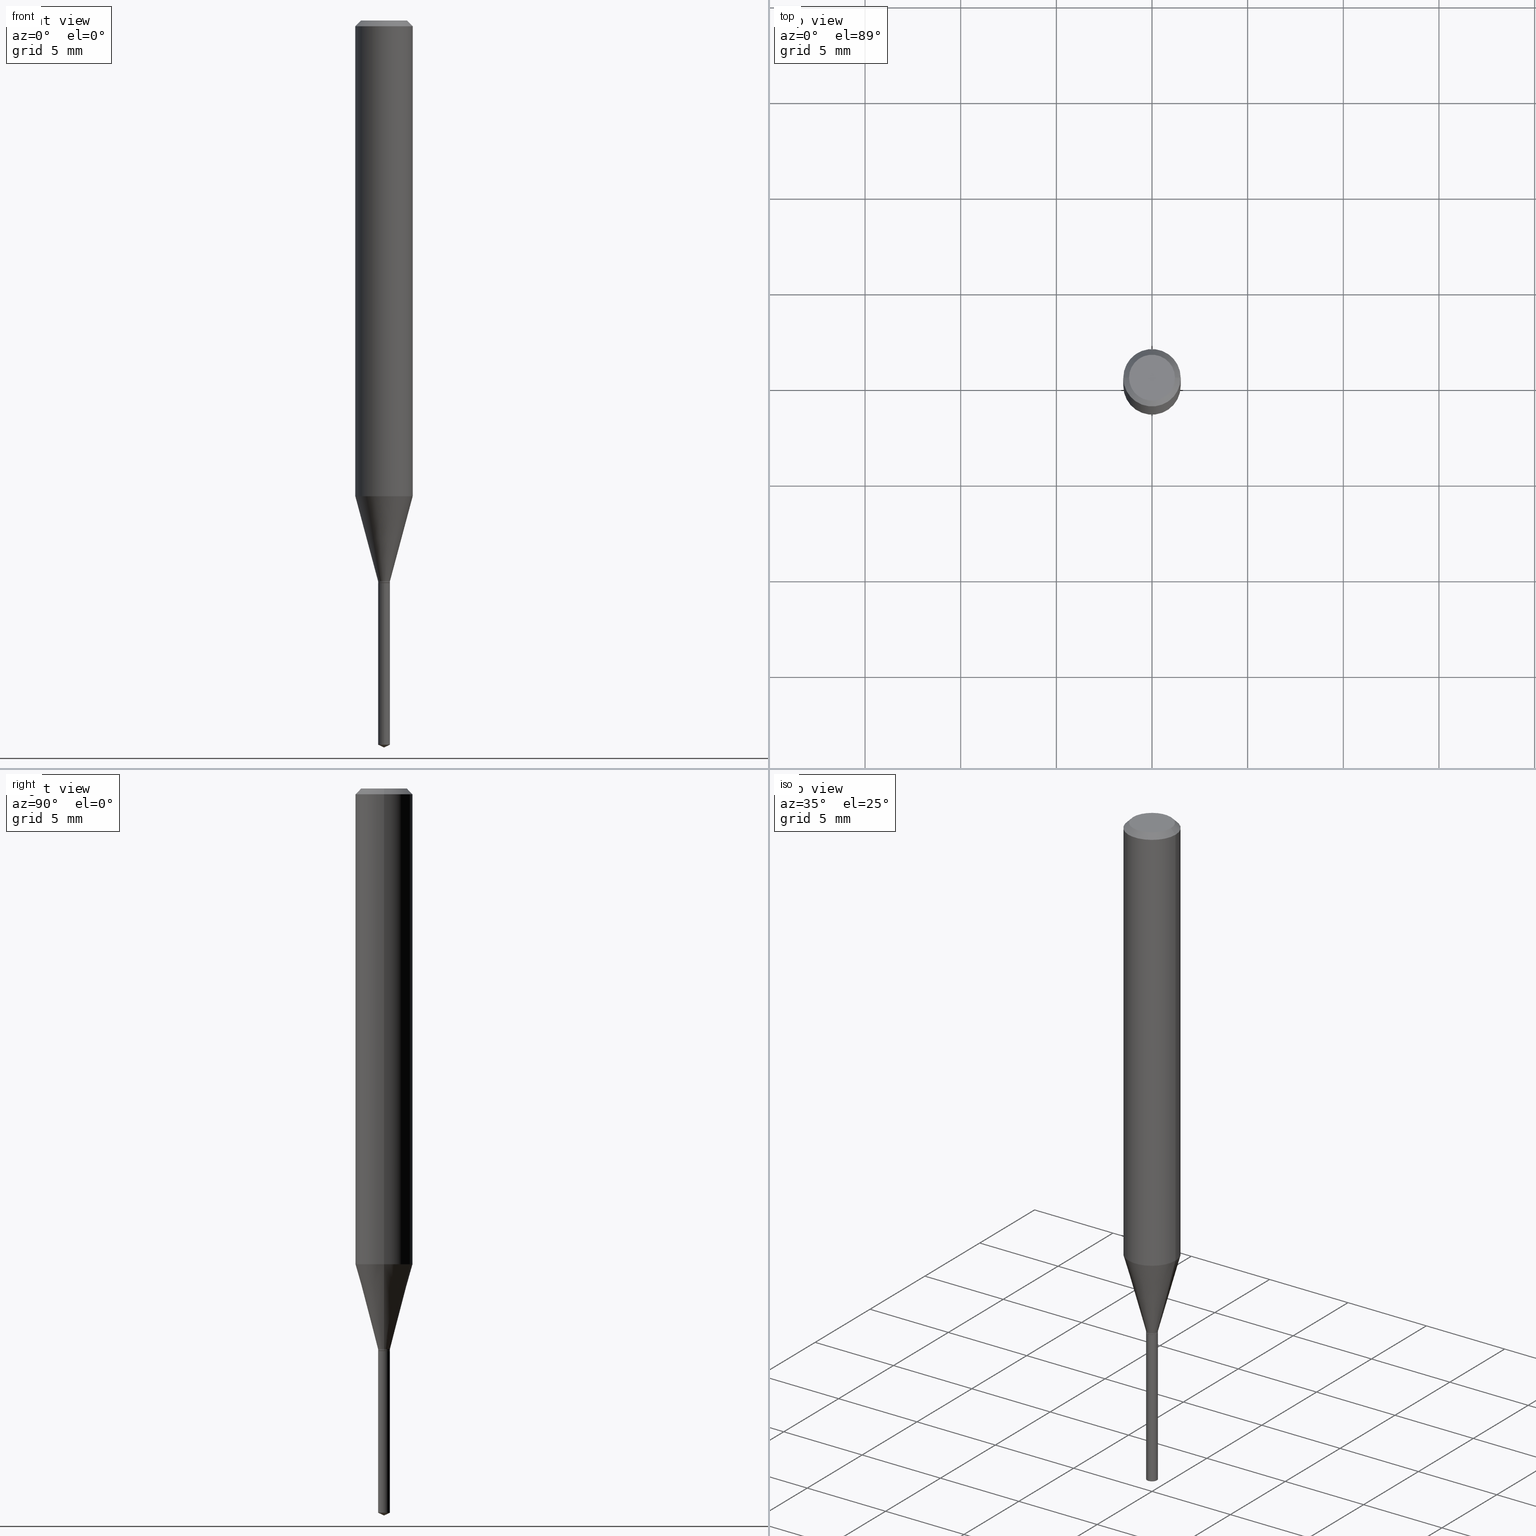
[diagram: canonical four-view strip — front | top / right | iso, engineering-drawing reading convention]
A machine part, canonical four-view strip (front | top / right | iso — engineering-drawing reading convention). The complete STEP part file that produces these views, byte-faithful:
ISO-10303-21;
HEADER;
FILE_DESCRIPTION (( 'STEP AP203' ),
    '1' );
FILE_NAME ('08286.STEP',
    '2024-04-24T14:06:29',
    ( '' ),
    ( '' ),
    'SwSTEP 2.0',
    'SolidWorks 2023',
    '' );
FILE_SCHEMA (( 'CONFIG_CONTROL_DESIGN' ));
ENDSEC;

DATA;
#1 = MECHANICAL_CONTEXT ( 'NONE', #192, 'mechanical' ) ;
#2 = CARTESIAN_POINT ( 'NONE',  ( 3.660391850923644026E-29, -5.221193332640872943E-15, -1.496099999999999985 ) ) ;
#3 = COORDINATED_UNIVERSAL_TIME_OFFSET ( 5, 0, .BEHIND. ) ;
#4 = LINE ( 'NONE', #351, #353 ) ;
#5 =( NAMED_UNIT ( * ) SI_UNIT ( $, .STERADIAN. ) SOLID_ANGLE_UNIT ( ) );
#6 = VERTEX_POINT ( 'NONE', #381 ) ;
#7 = DIRECTION ( 'NONE',  ( 6.982962677686265922E-15, 1.000000000000000000, -3.494426629357684682E-15 ) ) ;
#8 = ADVANCED_FACE ( 'NONE', ( #462 ), #44, .F. ) ;
#9 = DATE_AND_TIME ( #276, #169 ) ;
#10 = DIRECTION ( 'NONE',  ( 2.438088387897960049E-29, -3.491481338843145188E-15, -1.000000000000000000 ) ) ;
#11 = APPROVAL_DATE_TIME ( #9, #112 ) ;
#12 = CARTESIAN_POINT ( 'NONE',  ( 2.821581908576410135E-29, -4.028471168757220985E-15, -1.153799999999999937 ) ) ;
#13 = AXIS2_PLACEMENT_3D ( 'NONE', #449, #71, #221 ) ;
#14 = DIRECTION ( 'NONE',  ( -1.000000000000000000, 6.982962677686266711E-15, 0.000000000000000000 ) ) ;
#15 = EDGE_CURVE ( 'NONE', #392, #397, #197, .T. ) ;
#16 = DIRECTION ( 'NONE',  ( 2.445468806185136597E-29, -3.491481338843145583E-15, -1.000000000000000000 ) ) ;
#17 = ORIENTED_EDGE ( 'NONE', *, *, #357, .T. ) ;
#18 = DIRECTION ( 'NONE',  ( 1.000000000000000000, -6.982962677686284854E-15, 0.000000000000000000 ) ) ;
#19 = CIRCLE ( 'NONE', #53, 0.01220000000000000077 ) ;
#20 = CARTESIAN_POINT ( 'NONE',  ( -0.01220000000000000077, -3.941784954994488843E-15, -1.153799999999999937 ) ) ;
#21 = PERSON ( 'UNSPECIFIED', 'UNSPECIFIED', 'UNSPECIFIED', ('UNSPECIFIED'), ('UNSPECIFIED'), ('UNSPECIFIED') ) ;
#22 = EDGE_LOOP ( 'NONE', ( #101, #25, #49, #222 ) ) ;
#23 = EDGE_CURVE ( 'NONE', #162, #248, #121, .T. ) ;
#24 = DIRECTION ( 'NONE',  ( 1.000000000000000000, -6.982962677686284854E-15, 0.000000000000000000 ) ) ;
#25 = ORIENTED_EDGE ( 'NONE', *, *, #220, .T. ) ;
#26 = FACE_OUTER_BOUND ( 'NONE', #244, .T. ) ;
#27 = ORIENTED_EDGE ( 'NONE', *, *, #152, .F. ) ;
#28 = VECTOR ( 'NONE', #210, 39.37007874015748143 ) ;
#29 = FACE_OUTER_BOUND ( 'NONE', #184, .T. ) ;
#30 = CONICAL_SURFACE ( 'NONE', #155, 84.42940631927518780, 1.134464013796319781 ) ;
#31 = VERTEX_POINT ( 'NONE', #151 ) ;
#32 = EDGE_CURVE ( 'NONE', #404, #6, #4, .T. ) ;
#33 = FACE_OUTER_BOUND ( 'NONE', #63, .T. ) ;
#34 = ORIENTED_EDGE ( 'NONE', *, *, #67, .T. ) ;
#35 = LINE ( 'NONE', #328, #421 ) ;
#36 = VERTEX_POINT ( 'NONE', #74 ) ;
#37 = PERSON_AND_ORGANIZATION ( #21, #117 ) ;
#38 = LINE ( 'NONE', #310, #371 ) ;
#39 = AXIS2_PLACEMENT_3D ( 'NONE', #131, #434, #400 ) ;
#40 = DATE_AND_TIME ( #119, #318 ) ;
#41 = EDGE_CURVE ( 'NONE', #424, #335, #314, .T. ) ;
#42 = FACE_OUTER_BOUND ( 'NONE', #22, .T. ) ;
#43 = PERSON_AND_ORGANIZATION ( #21, #117 ) ;
#44 = PLANE ( 'NONE',  #263 ) ;
#45 =( CONVERSION_BASED_UNIT ( 'INCH', #73 ) LENGTH_UNIT ( ) NAMED_UNIT ( #435 ) );
#46 = CARTESIAN_POINT ( 'NONE',  ( 0.05904999999999999832, -4.463468013801466955E-16, -0.01181000000000007218 ) ) ;
#47 = CIRCLE ( 'NONE', #323, 0.01220000000000000077 ) ;
#48 = CC_DESIGN_PERSON_AND_ORGANIZATION_ASSIGNMENT ( #340, #382, ( #126 ) ) ;
#49 = ORIENTED_EDGE ( 'NONE', *, *, #200, .T. ) ;
#50 = DIRECTION ( 'NONE',  ( 1.000000000000000000, -6.982962677686266711E-15, 4.876176775795936353E-29 ) ) ;
#51 = ORIENTED_EDGE ( 'NONE', *, *, #324, .F. ) ;
#52 = CARTESIAN_POINT ( 'NONE',  ( 2.821581908576410135E-29, -4.028471168757220985E-15, -1.153799999999999937 ) ) ;
#53 = AXIS2_PLACEMENT_3D ( 'NONE', #358, #321, #128 ) ;
#54 = LINE ( 'NONE', #204, #354 ) ;
#55 = ORIENTED_EDGE ( 'NONE', *, *, #331, .T. ) ;
#56 = DIRECTION ( 'NONE',  ( -2.445468806185136597E-29, 3.491481338843145583E-15, 1.000000000000000000 ) ) ;
#57 = DIRECTION ( 'NONE',  ( -2.445468806185136597E-29, 3.491481338843145583E-15, 1.000000000000000000 ) ) ;
#58 = EDGE_LOOP ( 'NONE', ( #65, #333, #291 ) ) ;
#59 = CC_DESIGN_PERSON_AND_ORGANIZATION_ASSIGNMENT ( #425, #82, ( #355 ) ) ;
#60 = CIRCLE ( 'NONE', #39, 0.05905000000000013016 ) ;
#61 = VECTOR ( 'NONE', #325, 39.37007874015748143 ) ;
#62 = DIRECTION ( 'NONE',  ( 1.000000000000000000, -6.982962677686281699E-15, 0.000000000000000000 ) ) ;
#63 = EDGE_LOOP ( 'NONE', ( #453, #175, #261, #486 ) ) ;
#64 = CARTESIAN_POINT ( 'NONE',  ( 2.830630143159295633E-29, -4.041389649710940900E-15, -1.157499999999999973 ) ) ;
#65 = ORIENTED_EDGE ( 'NONE', *, *, #331, .F. ) ;
#66 = DIRECTION ( 'NONE',  ( -2.438088387897960049E-29, 3.491481338843145188E-15, 1.000000000000000000 ) ) ;
#67 = EDGE_CURVE ( 'NONE', #31, #162, #176, .T. ) ;
#68 = ORIENTED_EDGE ( 'NONE', *, *, #295, .F. ) ;
#69 = CARTESIAN_POINT ( 'NONE',  ( -0.01170000000000000207, -3.955606922452897667E-15, -1.157499999999999973 ) ) ;
#70 = ORIENTED_EDGE ( 'NONE', *, *, #75, .T. ) ;
#71 = DIRECTION ( 'NONE',  ( -2.445468806185136597E-29, 3.491481338843145583E-15, 1.000000000000000000 ) ) ;
#72 = ORIENTED_EDGE ( 'NONE', *, *, #41, .F. ) ;
#73 = LENGTH_MEASURE_WITH_UNIT ( LENGTH_MEASURE( 0.02539999999999999897 ), #423 );
#74 = CARTESIAN_POINT ( 'NONE',  ( -8.519214466773599548E-17, -0.01220000000000520668, -1.490411046570508935 ) ) ;
#75 = EDGE_CURVE ( 'NONE', #375, #172, #419, .T. ) ;
#76 = DIRECTION ( 'NONE',  ( 1.000000000000000000, -6.982962677686265922E-15, 4.876176775795935793E-29 ) ) ;
#77 = AXIS2_PLACEMENT_3D ( 'NONE', #92, #240, #396 ) ;
#78 = DIRECTION ( 'NONE',  ( 1.000000000000000000, -6.982962677686266711E-15, 0.000000000000000000 ) ) ;
#79 = CIRCLE ( 'NONE', #454, 0.01220000000000000077 ) ;
#80 = APPLICATION_PROTOCOL_DEFINITION ( 'international standard', 'config_control_design', 1994, #192 ) ;
#81 = ORIENTED_EDGE ( 'NONE', *, *, #191, .T. ) ;
#82 = PERSON_AND_ORGANIZATION_ROLE ( 'design_supplier' ) ;
#83 = DIRECTION ( 'NONE',  ( 0.2588190451025211836, 1.565188264969622559E-15, 0.9659258262890679791 ) ) ;
#84 = CC_DESIGN_DATE_AND_TIME_ASSIGNMENT ( #336, #459, ( #126 ) ) ;
#85 = COORDINATED_UNIVERSAL_TIME_OFFSET ( 5, 0, .BEHIND. ) ;
#86 = PLANE ( 'NONE',  #257 ) ;
#87 = AXIS2_PLACEMENT_3D ( 'NONE', #460, #116, #190 ) ;
#88 =( GEOMETRIC_REPRESENTATION_CONTEXT ( 3 ) GLOBAL_UNCERTAINTY_ASSIGNED_CONTEXT ( ( #386 ) ) GLOBAL_UNIT_ASSIGNED_CONTEXT ( ( #45, #186, #5 ) ) REPRESENTATION_CONTEXT ( 'NONE', 'WORKASPACE' ) );
#89 = FACE_OUTER_BOUND ( 'NONE', #383, .T. ) ;
#90 = APPROVAL_ROLE ( '' ) ;
#91 = DIRECTION ( 'NONE',  ( 1.000000000000000000, -6.982962677686284854E-15, 0.000000000000000000 ) ) ;
#92 = CARTESIAN_POINT ( 'NONE',  ( 2.830630143159295633E-29, -4.041389649710940900E-15, -1.157499999999999973 ) ) ;
#93 = CIRCLE ( 'NONE', #203, 0.01220000000000000077 ) ;
#94 = LINE ( 'NONE', #20, #231 ) ;
#95 = DIRECTION ( 'NONE',  ( -2.443412120811339220E-29, 3.494426629357685076E-15, 1.000000000000000000 ) ) ;
#96 = ADVANCED_FACE ( 'NONE', ( #271 ), #86, .F. ) ;
#97 = CARTESIAN_POINT ( 'NONE',  ( 2.830630143159295633E-29, -4.041389649710940900E-15, -1.157499999999999973 ) ) ;
#98 = CLOSED_SHELL ( 'NONE', ( #160, #234, #376, #279, #445, #431, #399, #319, #304, #96, #478, #471 ) ) ;
#99 = CIRCLE ( 'NONE', #77, 0.01170000000000000207 ) ;
#100 = CYLINDRICAL_SURFACE ( 'NONE', #129, 0.01220000000000000077 ) ;
#101 = ORIENTED_EDGE ( 'NONE', *, *, #32, .F. ) ;
#102 = ADVANCED_FACE ( 'NONE', ( #42 ), #223, .T. ) ;
#103 = LINE ( 'NONE', #174, #28 ) ;
#104 = ORIENTED_EDGE ( 'NONE', *, *, #341, .T. ) ;
#105 = CARTESIAN_POINT ( 'NONE',  ( 0.000000000000000000, 0.000000000000000000, 0.000000000000000000 ) ) ;
#106 = EDGE_LOOP ( 'NONE', ( #251, #134, #256, #281 ) ) ;
#107 = CONICAL_SURFACE ( 'NONE', #379, 84.42940631927518780, 1.134464013796319781 ) ;
#108 = DIRECTION ( 'NONE',  ( -2.445468806185136877E-29, 3.491481338843145188E-15, 1.000000000000000000 ) ) ;
#109 = EDGE_LOOP ( 'NONE', ( #297, #483, #366, #344 ) ) ;
#110 = APPROVAL_STATUS ( 'not_yet_approved' ) ;
#111 = DIRECTION ( 'NONE',  ( -6.982962677686266711E-15, -1.000000000000000000, 3.520397390770418371E-15 ) ) ;
#112 = APPROVAL ( #456, 'UNSPECIFIED' ) ;
#113 = CARTESIAN_POINT ( 'NONE',  ( 0.01170000000000000207, -4.123090313039870423E-15, -1.157499999999999973 ) ) ;
#114 = COORDINATED_UNIVERSAL_TIME_OFFSET ( 5, 0, .BEHIND. ) ;
#115 = AXIS2_PLACEMENT_3D ( 'NONE', #463, #377, #428 ) ;
#116 = DIRECTION ( 'NONE',  ( -2.445468806185136597E-29, 3.491481338843145583E-15, 1.000000000000000000 ) ) ;
#117 = ORGANIZATION ( 'UNSPECIFIED', 'UNSPECIFIED', '' ) ;
#118 = ADVANCED_FACE ( 'NONE', ( #385 ), #107, .T. ) ;
#119 = CALENDAR_DATE ( 2024, 24, 4 ) ;
#120 = CARTESIAN_POINT ( 'NONE',  ( 8.265746106709734507E-48, -1.180129479067563789E-33, -3.380025165646692144E-19 ) ) ;
#121 = LINE ( 'NONE', #46, #224 ) ;
#122 = CARTESIAN_POINT ( 'NONE',  ( 2.830630143159295633E-29, -4.041389649710940900E-15, -1.157499999999999973 ) ) ;
#123 = CONICAL_SURFACE ( 'NONE', #403, 0.05904999999999999832, 0.7853981633974452814 ) ;
#124 = CIRCLE ( 'NONE', #300, 0.04724000000000000421 ) ;
#125 = DIRECTION ( 'NONE',  ( -1.000000000000000000, 6.982962677686266711E-15, 0.000000000000000000 ) ) ;
#126 = PRODUCT_DEFINITION ( 'UNKNOWN', '', #355, #198 ) ;
#127 = DIRECTION ( 'NONE',  ( -2.445468806185136597E-29, 3.491481338843145583E-15, 1.000000000000000000 ) ) ;
#128 = DIRECTION ( 'NONE',  ( -6.982962677686266711E-15, -1.000000000000000000, 0.000000000000000000 ) ) ;
#129 = AXIS2_PLACEMENT_3D ( 'NONE', #105, #180, #451 ) ;
#130 = EDGE_CURVE ( 'NONE', #397, #375, #38, .T. ) ;
#131 = CARTESIAN_POINT ( 'NONE',  ( 2.394000050499997452E-29, -3.417997596358418837E-15, -0.9789534196653978393 ) ) ;
#132 = DIRECTION ( 'NONE',  ( -2.445468806185136597E-29, 3.491481338843145583E-15, 1.000000000000000000 ) ) ;
#133 = FACE_OUTER_BOUND ( 'NONE', #278, .T. ) ;
#134 = ORIENTED_EDGE ( 'NONE', *, *, #32, .T. ) ;
#135 = AXIS2_PLACEMENT_3D ( 'NONE', #120, #157, #154 ) ;
#136 = AXIS2_PLACEMENT_3D ( 'NONE', #52, #127, #280 ) ;
#137 = CONICAL_SURFACE ( 'NONE', #490, 0.01170000000000000207, 0.7853981633974119747 ) ;
#138 = CARTESIAN_POINT ( 'NONE',  ( 2.830630143159295633E-29, -4.041389649710940900E-15, -1.157499999999999973 ) ) ;
#139 = ORIENTED_EDGE ( 'NONE', *, *, #130, .F. ) ;
#140 = CYLINDRICAL_SURFACE ( 'NONE', #264, 0.05905000000000006771 ) ;
#141 = ORIENTED_EDGE ( 'NONE', *, *, #225, .T. ) ;
#142 = DIRECTION ( 'NONE',  ( 1.000000000000000000, -6.982962677686266711E-15, 4.876176775795936353E-29 ) ) ;
#143 = ORIENTED_EDGE ( 'NONE', *, *, #452, .T. ) ;
#144 = AXIS2_PLACEMENT_3D ( 'NONE', #472, #57, #18 ) ;
#145 = APPROVAL_ROLE ( '' ) ;
#146 = EDGE_CURVE ( 'NONE', #288, #404, #188, .T. ) ;
#147 = APPROVAL_PERSON_ORGANIZATION ( #37, #112, #90 ) ;
#148 = VERTEX_POINT ( 'NONE', #113 ) ;
#149 = EDGE_LOOP ( 'NONE', ( #479, #81 ) ) ;
#150 = DIRECTION ( 'NONE',  ( 0.000000000000000000, 0.000000000000000000, 1.000000000000000000 ) ) ;
#151 = CARTESIAN_POINT ( 'NONE',  ( -0.04724000000000000421, 3.504923541997677355E-16, -3.380025165670481712E-19 ) ) ;
#152 = EDGE_CURVE ( 'NONE', #248, #414, #153, .T. ) ;
#153 = CIRCLE ( 'NONE', #168, 0.05904999999999999832 ) ;
#154 = DIRECTION ( 'NONE',  ( 1.000000000000000000, -6.982962677686266711E-15, 4.876185090822587894E-29 ) ) ;
#155 = AXIS2_PLACEMENT_3D ( 'NONE', #289, #477, #372 ) ;
#156 = APPROVAL_STATUS ( 'not_yet_approved' ) ;
#157 = DIRECTION ( 'NONE',  ( -2.445468806185136597E-29, 3.491481338843145583E-15, 1.000000000000000000 ) ) ;
#158 = CARTESIAN_POINT ( 'NONE',  ( 2.830630143159295633E-29, -4.041389649710940900E-15, -1.157499999999999973 ) ) ;
#159 = LINE ( 'NONE', #317, #177 ) ;
#160 = ADVANCED_FACE ( 'NONE', ( #227 ), #436, .T. ) ;
#161 = AXIS2_PLACEMENT_3D ( 'NONE', #433, #439, #125 ) ;
#162 = VERTEX_POINT ( 'NONE', #267 ) ;
#163 = AXIS2_PLACEMENT_3D ( 'NONE', #201, #202, #91 ) ;
#164 = CARTESIAN_POINT ( 'NONE',  ( 3.655588873945844092E-29, -5.228011680182032039E-15, -1.496099999999999985 ) ) ;
#165 = CARTESIAN_POINT ( 'NONE',  ( 0.05904999999999999832, -4.535783407291118600E-16, -0.01181000000000007218 ) ) ;
#166 = APPROVAL ( #156, 'UNSPECIFIED' ) ;
#167 = DIRECTION ( 'NONE',  ( 1.000000000000000000, -6.982962677686284854E-15, 0.000000000000000000 ) ) ;
#168 = AXIS2_PLACEMENT_3D ( 'NONE', #262, #418, #78 ) ;
#169 = LOCAL_TIME ( 10, 6, 29.00000000000000000, #236 ) ;
#170 = DIRECTION ( 'NONE',  ( 1.000000000000000000, -6.982962677686266711E-15, 0.000000000000000000 ) ) ;
#171 = CARTESIAN_POINT ( 'NONE',  ( -0.05904999999999999832, -1.310040510018738001E-15, -0.01181000000000007218 ) ) ;
#172 = VERTEX_POINT ( 'NONE', #360 ) ;
#173 = MANIFOLD_SOLID_BREP ( 'Body-Move/Copy2[2]', #98 ) ;
#174 = CARTESIAN_POINT ( 'NONE',  ( -0.05904999999999999832, 3.711095515056362547E-16, -0.01181000000000007218 ) ) ;
#175 = ORIENTED_EDGE ( 'NONE', *, *, #422, .T. ) ;
#176 = CIRCLE ( 'NONE', #135, 0.04724000000000000421 ) ;
#177 = VECTOR ( 'NONE', #237, 39.37007874015748854 ) ;
#178 = CYLINDRICAL_SURFACE ( 'NONE', #13, 0.01220000000000000077 ) ;
#179 = EDGE_LOOP ( 'NONE', ( #72, #327, #143, #51 ) ) ;
#180 = DIRECTION ( 'NONE',  ( -2.445468806185136597E-29, 3.491481338843145583E-15, 1.000000000000000000 ) ) ;
#181 = EDGE_LOOP ( 'NONE', ( #469, #104, #368, #299 ) ) ;
#182 = CC_DESIGN_DATE_AND_TIME_ASSIGNMENT ( #488, #301, ( #275 ) ) ;
#183 = APPROVAL_DATE_TIME ( #40, #166 ) ;
#184 = EDGE_LOOP ( 'NONE', ( #216, #407, #253, #401 ) ) ;
#185 = CIRCLE ( 'NONE', #249, 0.01220000000000000077 ) ;
#186 =( NAMED_UNIT ( * ) PLANE_ANGLE_UNIT ( ) SI_UNIT ( $, .RADIAN. ) );
#187 = VECTOR ( 'NONE', #108, 39.37007874015748143 ) ;
#188 = LINE ( 'NONE', #2, #363 ) ;
#189 = PERSON_AND_ORGANIZATION ( #21, #117 ) ;
#190 = DIRECTION ( 'NONE',  ( 1.000000000000000000, -6.982962677686281699E-15, 0.000000000000000000 ) ) ;
#191 = EDGE_CURVE ( 'NONE', #6, #443, #93, .T. ) ;
#192 = APPLICATION_CONTEXT ( 'configuration controlled 3d designs of mechanical parts and assemblies' ) ;
#193 = CALENDAR_DATE ( 2024, 24, 4 ) ;
#194 = DIRECTION ( 'NONE',  ( -6.982962677686266711E-15, -1.000000000000000000, 0.000000000000000000 ) ) ;
#195 = DIRECTION ( 'NONE',  ( 1.000000000000000000, 0.000000000000000000, 0.000000000000000000 ) ) ;
#196 = AXIS2_PLACEMENT_3D ( 'NONE', #254, #447, #296 ) ;
#197 = LINE ( 'NONE', #313, #378 ) ;
#198 = DESIGN_CONTEXT ( 'detailed design', #390, 'design' ) ;
#199 = CARTESIAN_POINT ( 'NONE',  ( -0.01170000000000000207, -3.958256149627008868E-15, -1.157499999999999973 ) ) ;
#200 = EDGE_CURVE ( 'NONE', #36, #443, #285, .T. ) ;
#201 = CARTESIAN_POINT ( 'NONE',  ( 2.829407408756202832E-29, -4.039643909041518608E-15, -1.156999999999999806 ) ) ;
#202 = DIRECTION ( 'NONE',  ( -2.445468806185136597E-29, 3.491481338843145583E-15, 1.000000000000000000 ) ) ;
#203 = AXIS2_PLACEMENT_3D ( 'NONE', #362, #438, #474 ) ;
#204 = CARTESIAN_POINT ( 'NONE',  ( -0.05905000000000006771, 4.195754854663396409E-16, -2.904631170795525045E-30 ) ) ;
#205 = EDGE_CURVE ( 'NONE', #370, #172, #94, .T. ) ;
#206 = ORIENTED_EDGE ( 'NONE', *, *, #23, .F. ) ;
#207 = DIRECTION ( 'NONE',  ( -6.982962677686266711E-15, -1.000000000000000000, 0.000000000000000000 ) ) ;
#208 = FACE_OUTER_BOUND ( 'NONE', #481, .T. ) ;
#209 = CIRCLE ( 'NONE', #420, 0.05904999999999999832 ) ;
#210 = DIRECTION ( 'NONE',  ( -0.7071067811865453523, 2.468850131082234184E-15, -0.7071067811865496822 ) ) ;
#211 = ORIENTED_EDGE ( 'NONE', *, *, #212, .T. ) ;
#212 = EDGE_CURVE ( 'NONE', #172, #375, #60, .T. ) ;
#213 = DIRECTION ( 'NONE',  ( -2.443412120811339220E-29, 3.494426629357685076E-15, 1.000000000000000000 ) ) ;
#214 = ORIENTED_EDGE ( 'NONE', *, *, #295, .T. ) ;
#215 = DIRECTION ( 'NONE',  ( -2.445468806185136597E-29, 3.491481338843145583E-15, 1.000000000000000000 ) ) ;
#216 = ORIENTED_EDGE ( 'NONE', *, *, #422, .F. ) ;
#217 = CC_DESIGN_APPROVAL ( #112, ( #275 ) ) ;
#218 = CARTESIAN_POINT ( 'NONE',  ( 2.829407408756202832E-29, -4.039643909041518608E-15, -1.156999999999999806 ) ) ;
#219 = ORIENTED_EDGE ( 'NONE', *, *, #465, .T. ) ;
#220 = EDGE_CURVE ( 'NONE', #404, #36, #19, .T. ) ;
#221 = DIRECTION ( 'NONE',  ( 1.000000000000000000, -6.982962677686267499E-15, 4.876176775795935793E-29 ) ) ;
#222 = ORIENTED_EDGE ( 'NONE', *, *, #191, .F. ) ;
#223 = CYLINDRICAL_SURFACE ( 'NONE', #348, 0.01220000000000000077 ) ;
#224 = VECTOR ( 'NONE', #389, 39.37007874015748143 ) ;
#225 = EDGE_CURVE ( 'NONE', #397, #370, #338, .T. ) ;
#226 = AXIS2_PLACEMENT_3D ( 'NONE', #138, #66, #76 ) ;
#227 = FACE_OUTER_BOUND ( 'NONE', #109, .T. ) ;
#228 = PERSON_AND_ORGANIZATION_ROLE ( 'design_owner' ) ;
#229 = DIRECTION ( 'NONE',  ( -2.443412120811339220E-29, 3.494426629357685076E-15, 1.000000000000000000 ) ) ;
#230 = DIRECTION ( 'NONE',  ( -2.443412120811338940E-29, 3.494426629357684682E-15, 1.000000000000000000 ) ) ;
#231 = VECTOR ( 'NONE', #322, 39.37007874015748854 ) ;
#232 = CARTESIAN_POINT ( 'NONE',  ( 4.132873053354867254E-48, -5.900647395337818946E-34, -1.690012582823346072E-19 ) ) ;
#233 = AXIS2_PLACEMENT_3D ( 'NONE', #305, #150, #195 ) ;
#234 = ADVANCED_FACE ( 'NONE', ( #208 ), #307, .T. ) ;
#235 = CARTESIAN_POINT ( 'NONE',  ( 0.000000000000000000, 0.000000000000000000, 0.000000000000000000 ) ) ;
#236 = COORDINATED_UNIVERSAL_TIME_OFFSET ( 5, 0, .BEHIND. ) ;
#237 = DIRECTION ( 'NONE',  ( -6.328713451373386733E-15, -0.9063077870366508249, 0.4226182617406975539 ) ) ;
#238 = ORIENTED_EDGE ( 'NONE', *, *, #393, .F. ) ;
#239 = ADVANCED_FACE ( 'NONE', ( #430 ), #243, .T. ) ;
#240 = DIRECTION ( 'NONE',  ( -2.445468806185136597E-29, 3.491481338843145583E-15, 1.000000000000000000 ) ) ;
#241 = AXIS2_PLACEMENT_3D ( 'NONE', #64, #215, #62 ) ;
#242 = CC_DESIGN_APPROVAL ( #166, ( #126 ) ) ;
#243 = CYLINDRICAL_SURFACE ( 'NONE', #273, 0.01220000000000000077 ) ;
#244 = EDGE_LOOP ( 'NONE', ( #303, #259 ) ) ;
#245 = FACE_OUTER_BOUND ( 'NONE', #329, .T. ) ;
#246 = PRODUCT_DEFINITION_SHAPE ( 'NONE', 'NONE',  #126 ) ;
#247 = DIRECTION ( 'NONE',  ( -2.445468806185136597E-29, 3.491481338843145583E-15, 1.000000000000000000 ) ) ;
#248 = VERTEX_POINT ( 'NONE', #165 ) ;
#249 = AXIS2_PLACEMENT_3D ( 'NONE', #122, #274, #282 ) ;
#250 = DIRECTION ( 'NONE',  ( -6.982962677686266711E-15, -1.000000000000000000, 0.000000000000000000 ) ) ;
#251 = ORIENTED_EDGE ( 'NONE', *, *, #458, .T. ) ;
#252 = DIRECTION ( 'NONE',  ( -2.445468806185136597E-29, 3.491481338843145583E-15, 1.000000000000000000 ) ) ;
#253 = ORIENTED_EDGE ( 'NONE', *, *, #15, .T. ) ;
#254 = CARTESIAN_POINT ( 'NONE',  ( 2.821581908576410135E-29, -4.028471168757220985E-15, -1.153799999999999937 ) ) ;
#255 = CC_DESIGN_PERSON_AND_ORGANIZATION_ASSIGNMENT ( #349, #228, ( #446 ) ) ;
#256 = ORIENTED_EDGE ( 'NONE', *, *, #311, .F. ) ;
#257 = AXIS2_PLACEMENT_3D ( 'NONE', #232, #10, #306 ) ;
#258 = LINE ( 'NONE', #374, #61 ) ;
#259 = ORIENTED_EDGE ( 'NONE', *, *, #384, .F. ) ;
#260 = DATE_AND_TIME ( #268, #364 ) ;
#261 = ORIENTED_EDGE ( 'NONE', *, *, #225, .F. ) ;
#262 = CARTESIAN_POINT ( 'NONE',  ( 2.888098660104664204E-31, -4.123439461173780263E-17, -0.01181000000000007218 ) ) ;
#263 = AXIS2_PLACEMENT_3D ( 'NONE', #426, #417, #7 ) ;
#264 = AXIS2_PLACEMENT_3D ( 'NONE', #485, #402, #142 ) ;
#265 = LOCAL_TIME ( 10, 6, 29.00000000000000000, #3 ) ;
#266 = PERSON_AND_ORGANIZATION ( #21, #117 ) ;
#267 = CARTESIAN_POINT ( 'NONE',  ( 0.04724000000000000421, -3.852183633974369345E-16, -3.380025165621689721E-19 ) ) ;
#268 = CALENDAR_DATE ( 2024, 24, 4 ) ;
#269 = CARTESIAN_POINT ( 'NONE',  ( -9.253935810373158253E-28, 1.323512490431036956E-13, 37.87397874015748300 ) ) ;
#270 = PERSON_AND_ORGANIZATION ( #21, #117 ) ;
#271 = FACE_OUTER_BOUND ( 'NONE', #395, .T. ) ;
#272 = CC_DESIGN_PERSON_AND_ORGANIZATION_ASSIGNMENT ( #270, #427, ( #275 ) ) ;
#273 = AXIS2_PLACEMENT_3D ( 'NONE', #352, #95, #207 ) ;
#274 = DIRECTION ( 'NONE',  ( -2.443412120811339220E-29, 3.494426629357685076E-15, 1.000000000000000000 ) ) ;
#275 = SECURITY_CLASSIFICATION ( '', '', #312 ) ;
#276 = CALENDAR_DATE ( 2024, 24, 4 ) ;
#277 = CYLINDRICAL_SURFACE ( 'NONE', #316, 0.05905000000000006771 ) ;
#278 = EDGE_LOOP ( 'NONE', ( #409, #55, #302 ) ) ;
#279 = ADVANCED_FACE ( 'NONE', ( #245 ), #292, .T. ) ;
#280 = DIRECTION ( 'NONE',  ( 1.000000000000000000, -6.982962677686284854E-15, 0.000000000000000000 ) ) ;
#281 = ORIENTED_EDGE ( 'NONE', *, *, #200, .F. ) ;
#282 = DIRECTION ( 'NONE',  ( -6.982962677686266711E-15, -1.000000000000000000, 0.000000000000000000 ) ) ;
#283 = CIRCLE ( 'NONE', #163, 0.01220000000000000077 ) ;
#284 = APPROVAL_PERSON_ORGANIZATION ( #189, #166, #343 ) ;
#285 = LINE ( 'NONE', #356, #466 ) ;
#286 = DIRECTION ( 'NONE',  ( 1.000000000000000000, -6.982962677686266711E-15, 4.876185090822587894E-29 ) ) ;
#287 = PRODUCT_RELATED_PRODUCT_CATEGORY ( 'detail', '', ( #446 ) ) ;
#288 = VERTEX_POINT ( 'NONE', #164 ) ;
#289 = CARTESIAN_POINT ( 'NONE',  ( -9.253935810373158253E-28, 1.323512490431036956E-13, 37.87397874015748300 ) ) ;
#290 = VECTOR ( 'NONE', #346, 39.37007874015748143 ) ;
#291 = ORIENTED_EDGE ( 'NONE', *, *, #458, .F. ) ;
#292 = CONICAL_SURFACE ( 'NONE', #429, 0.01220000000000000077, 0.2617993877991499074 ) ;
#293 = CARTESIAN_POINT ( 'NONE',  ( -0.01220000000000000077, -3.947371325136637655E-15, -1.153799999999999937 ) ) ;
#294 = ORIENTED_EDGE ( 'NONE', *, *, #465, .F. ) ;
#295 = EDGE_CURVE ( 'NONE', #414, #248, #209, .T. ) ;
#296 = DIRECTION ( 'NONE',  ( 1.000000000000000000, -6.982962677686284854E-15, 0.000000000000000000 ) ) ;
#297 = ORIENTED_EDGE ( 'NONE', *, *, #347, .T. ) ;
#298 = CARTESIAN_POINT ( 'NONE',  ( -8.519214466774414293E-17, -0.01220000000000404268, -1.157499999999999973 ) ) ;
#299 = ORIENTED_EDGE ( 'NONE', *, *, #212, .F. ) ;
#300 = AXIS2_PLACEMENT_3D ( 'NONE', #326, #252, #286 ) ;
#301 = DATE_TIME_ROLE ( 'classification_date' ) ;
#302 = ORIENTED_EDGE ( 'NONE', *, *, #220, .F. ) ;
#303 = ORIENTED_EDGE ( 'NONE', *, *, #347, .F. ) ;
#304 = ADVANCED_FACE ( 'NONE', ( #391 ), #123, .T. ) ;
#305 = CARTESIAN_POINT ( 'NONE',  ( 0.000000000000000000, 0.000000000000000000, 0.000000000000000000 ) ) ;
#306 = DIRECTION ( 'NONE',  ( -1.000000000000000000, 6.982962677686265922E-15, -4.876176775795935793E-29 ) ) ;
#307 = CONICAL_SURFACE ( 'NONE', #161, 0.05904999999999999832, 0.7853981633974452814 ) ;
#308 = CC_DESIGN_APPROVAL ( #484, ( #355 ) ) ;
#309 = APPROVAL_DATE_TIME ( #260, #484 ) ;
#310 = CARTESIAN_POINT ( 'NONE',  ( 0.01220000000000000077, -4.113663313424993515E-15, -1.153799999999999937 ) ) ;
#311 = EDGE_CURVE ( 'NONE', #443, #6, #185, .T. ) ;
#312 = SECURITY_CLASSIFICATION_LEVEL ( 'unclassified' ) ;
#313 = CARTESIAN_POINT ( 'NONE',  ( 0.01220000000000000077, -8.519214466777246797E-17, 5.948935666471041899E-31 ) ) ;
#314 = LINE ( 'NONE', #199, #290 ) ;
#315 = CLOSED_SHELL ( 'NONE', ( #239, #118, #437, #102, #8 ) ) ;
#316 = AXIS2_PLACEMENT_3D ( 'NONE', #235, #470, #50 ) ;
#317 = CARTESIAN_POINT ( 'NONE',  ( 3.655588873945844653E-29, -5.228011680182032039E-15, -1.496099999999999985 ) ) ;
#318 = LOCAL_TIME ( 10, 6, 29.00000000000000000, #388 ) ;
#319 = ADVANCED_FACE ( 'NONE', ( #89 ), #277, .T. ) ;
#320 = CARTESIAN_POINT ( 'NONE',  ( 2.888098660104664204E-31, -4.123439461173780263E-17, -0.01181000000000007218 ) ) ;
#321 = DIRECTION ( 'NONE',  ( -2.443412120811339220E-29, 3.494426629357685076E-15, 1.000000000000000000 ) ) ;
#322 = DIRECTION ( 'NONE',  ( -0.2588190451025211836, 5.211531920934547886E-15, 0.9659258262890679791 ) ) ;
#323 = AXIS2_PLACEMENT_3D ( 'NONE', #218, #132, #24 ) ;
#324 = EDGE_CURVE ( 'NONE', #335, #392, #283, .T. ) ;
#325 = DIRECTION ( 'NONE',  ( 0.7071067811865218156, -2.468850131081987665E-15, 0.7071067811865732189 ) ) ;
#326 = CARTESIAN_POINT ( 'NONE',  ( 8.265746106709734507E-48, -1.180129479067563789E-33, -3.380025165646692144E-19 ) ) ;
#327 = ORIENTED_EDGE ( 'NONE', *, *, #384, .T. ) ;
#328 = CARTESIAN_POINT ( 'NONE',  ( -0.01220000000000000077, 8.668621376273222818E-17, -6.001100810110984987E-31 ) ) ;
#329 = EDGE_LOOP ( 'NONE', ( #141, #473, #476, #139 ) ) ;
#330 = CIRCLE ( 'NONE', #241, 0.01170000000000000207 ) ;
#331 = EDGE_CURVE ( 'NONE', #288, #36, #159, .T. ) ;
#332 = CARTESIAN_POINT ( 'NONE',  ( 0.05905000000000013016, -3.830341542475794546E-15, -0.9789534196653978393 ) ) ;
#333 = ORIENTED_EDGE ( 'NONE', *, *, #146, .T. ) ;
#334 = LINE ( 'NONE', #410, #187 ) ;
#335 = VERTEX_POINT ( 'NONE', #394 ) ;
#336 = DATE_AND_TIME ( #193, #265 ) ;
#337 = EDGE_LOOP ( 'NONE', ( #206, #455, #441, #214 ) ) ;
#338 = CIRCLE ( 'NONE', #144, 0.01220000000000000077 ) ;
#339 = MANIFOLD_SOLID_BREP ( 'Body-Move/Copy2[1]', #315 ) ;
#340 = PERSON_AND_ORGANIZATION ( #21, #117 ) ;
#341 = EDGE_CURVE ( 'NONE', #370, #397, #461, .T. ) ;
#342 = DIRECTION ( 'NONE',  ( 6.439704144417040608E-15, 0.9063077870366537114, 0.4226182617406912811 ) ) ;
#343 = APPROVAL_ROLE ( '' ) ;
#344 = ORIENTED_EDGE ( 'NONE', *, *, #452, .F. ) ;
#345 = PERSON_AND_ORGANIZATION_ROLE ( 'creator' ) ;
#346 = DIRECTION ( 'NONE',  ( -0.7071067811865218156, 7.493145998870261075E-15, 0.7071067811865732189 ) ) ;
#347 = EDGE_CURVE ( 'NONE', #148, #424, #99, .T. ) ;
#348 = AXIS2_PLACEMENT_3D ( 'NONE', #158, #229, #194 ) ;
#349 = PERSON_AND_ORGANIZATION ( #21, #117 ) ;
#350 = DIRECTION ( 'NONE',  ( -2.445468806185136877E-29, 3.491481338843145188E-15, 1.000000000000000000 ) ) ;
#351 = CARTESIAN_POINT ( 'NONE',  ( 8.668621376276052856E-17, 0.01219999999999595887, -1.157499999999999973 ) ) ;
#352 = CARTESIAN_POINT ( 'NONE',  ( 2.830630143159295633E-29, -4.041389649710940900E-15, -1.157499999999999973 ) ) ;
#353 = VECTOR ( 'NONE', #230, 39.37007874015748143 ) ;
#354 = VECTOR ( 'NONE', #482, 39.37007874015748143 ) ;
#355 = PRODUCT_DEFINITION_FORMATION_WITH_SPECIFIED_SOURCE ( 'ANY', '', #446, .NOT_KNOWN. ) ;
#356 = CARTESIAN_POINT ( 'NONE',  ( -8.519214466774414293E-17, -0.01220000000000404268, -1.157499999999999973 ) ) ;
#357 = EDGE_CURVE ( 'NONE', #172, #414, #54, .T. ) ;
#358 = CARTESIAN_POINT ( 'NONE',  ( 3.644069029501665406E-29, -5.204722876054263859E-15, -1.490411046570508935 ) ) ;
#359 = ORIENTED_EDGE ( 'NONE', *, *, #415, .T. ) ;
#360 = CARTESIAN_POINT ( 'NONE',  ( -0.05905000000000013016, -2.998422110892078950E-15, -0.9789534196653978393 ) ) ;
#361 = CC_DESIGN_PERSON_AND_ORGANIZATION_ASSIGNMENT ( #266, #345, ( #355 ) ) ;
#362 = CARTESIAN_POINT ( 'NONE',  ( 2.830630143159295633E-29, -4.041389649710940900E-15, -1.157499999999999973 ) ) ;
#363 = VECTOR ( 'NONE', #342, 39.37007874015748854 ) ;
#364 = LOCAL_TIME ( 10, 6, 29.00000000000000000, #114 ) ;
#365 = FACE_OUTER_BOUND ( 'NONE', #181, .T. ) ;
#366 = ORIENTED_EDGE ( 'NONE', *, *, #405, .F. ) ;
#367 = CARTESIAN_POINT ( 'NONE',  ( 0.01220000000000000077, -4.124836053709291138E-15, -1.156999999999999806 ) ) ;
#368 = ORIENTED_EDGE ( 'NONE', *, *, #130, .T. ) ;
#369 = CARTESIAN_POINT ( 'NONE',  ( 8.668621376276865137E-17, 0.01219999999999479313, -1.490411046570508935 ) ) ;
#370 = VERTEX_POINT ( 'NONE', #293 ) ;
#371 = VECTOR ( 'NONE', #83, 39.37007874015748854 ) ;
#372 = DIRECTION ( 'NONE',  ( -6.982962677686266711E-15, -1.000000000000000000, 3.520397390770418371E-15 ) ) ;
#373 = EDGE_LOOP ( 'NONE', ( #70, #17, #27, #450 ) ) ;
#374 = CARTESIAN_POINT ( 'NONE',  ( 0.01170000000000000207, -4.123090313039870423E-15, -1.157499999999999973 ) ) ;
#375 = VERTEX_POINT ( 'NONE', #332 ) ;
#376 = ADVANCED_FACE ( 'NONE', ( #413 ), #140, .T. ) ;
#377 = DIRECTION ( 'NONE',  ( -2.445468806185136597E-29, 3.491481338843145583E-15, 1.000000000000000000 ) ) ;
#378 = VECTOR ( 'NONE', #350, 39.37007874015748143 ) ;
#379 = AXIS2_PLACEMENT_3D ( 'NONE', #269, #457, #111 ) ;
#380 = APPLICATION_PROTOCOL_DEFINITION ( 'international standard', 'config_control_design', 1994, #390 ) ;
#381 = CARTESIAN_POINT ( 'NONE',  ( 8.668621376276871300E-17, 0.01219999999999595887, -1.157499999999999973 ) ) ;
#382 = PERSON_AND_ORGANIZATION_ROLE ( 'creator' ) ;
#383 = EDGE_LOOP ( 'NONE', ( #411, #211, #359, #68 ) ) ;
#384 = EDGE_CURVE ( 'NONE', #424, #148, #330, .T. ) ;
#385 = FACE_OUTER_BOUND ( 'NONE', #58, .T. ) ;
#386 = UNCERTAINTY_MEASURE_WITH_UNIT (LENGTH_MEASURE( 1.000000000000000082E-05 ), #45, 'distance_accuracy_value', 'NONE');
#387 = APPROVAL_PERSON_ORGANIZATION ( #43, #484, #145 ) ;
#388 = COORDINATED_UNIVERSAL_TIME_OFFSET ( 5, 0, .BEHIND. ) ;
#389 = DIRECTION ( 'NONE',  ( 0.7071067811865453523, -7.319954787623248157E-15, -0.7071067811865496822 ) ) ;
#390 = APPLICATION_CONTEXT ( 'configuration controlled 3d designs of mechanical parts and assemblies' ) ;
#391 = FACE_OUTER_BOUND ( 'NONE', #337, .T. ) ;
#392 = VERTEX_POINT ( 'NONE', #367 ) ;
#393 = EDGE_CURVE ( 'NONE', #31, #414, #103, .T. ) ;
#394 = CARTESIAN_POINT ( 'NONE',  ( -0.01220000000000000077, -3.947371325136637655E-15, -1.156999999999999806 ) ) ;
#395 = EDGE_LOOP ( 'NONE', ( #34, #219 ) ) ;
#396 = DIRECTION ( 'NONE',  ( 1.000000000000000000, -6.982962677686281699E-15, 0.000000000000000000 ) ) ;
#397 = VERTEX_POINT ( 'NONE', #442 ) ;
#398 = DIRECTION ( 'NONE',  ( -2.445468806185136597E-29, 3.491481338843145583E-15, 1.000000000000000000 ) ) ;
#399 = ADVANCED_FACE ( 'NONE', ( #365 ), #412, .T. ) ;
#400 = DIRECTION ( 'NONE',  ( 1.000000000000000000, -6.982962677686265133E-15, 0.000000000000000000 ) ) ;
#401 = ORIENTED_EDGE ( 'NONE', *, *, #341, .F. ) ;
#402 = DIRECTION ( 'NONE',  ( -2.445468806185136597E-29, 3.491481338843145583E-15, 1.000000000000000000 ) ) ;
#403 = AXIS2_PLACEMENT_3D ( 'NONE', #464, #16, #14 ) ;
#404 = VERTEX_POINT ( 'NONE', #369 ) ;
#405 = EDGE_CURVE ( 'NONE', #392, #335, #47, .T. ) ;
#406 = DIRECTION ( 'NONE',  ( 1.000000000000000000, -6.982962677686281699E-15, 0.000000000000000000 ) ) ;
#407 = ORIENTED_EDGE ( 'NONE', *, *, #324, .T. ) ;
#408 = DIRECTION ( 'NONE',  ( -2.445468806185136877E-29, 3.491481338843145188E-15, 1.000000000000000000 ) ) ;
#409 = ORIENTED_EDGE ( 'NONE', *, *, #146, .F. ) ;
#410 = CARTESIAN_POINT ( 'NONE',  ( 0.05905000000000006771, -4.123439461173745257E-16, 2.879382386107503723E-30 ) ) ;
#411 = ORIENTED_EDGE ( 'NONE', *, *, #357, .F. ) ;
#412 = CONICAL_SURFACE ( 'NONE', #196, 0.01220000000000000077, 0.2617993877991499074 ) ;
#413 = FACE_OUTER_BOUND ( 'NONE', #373, .T. ) ;
#414 = VERTEX_POINT ( 'NONE', #171 ) ;
#415 = EDGE_CURVE ( 'NONE', #375, #248, #334, .T. ) ;
#416 = CALENDAR_DATE ( 2024, 24, 4 ) ;
#417 = DIRECTION ( 'NONE',  ( 2.443412120811339220E-29, -3.494426629357684682E-15, -1.000000000000000000 ) ) ;
#418 = DIRECTION ( 'NONE',  ( -2.445468806185136597E-29, 3.491481338843145583E-15, 1.000000000000000000 ) ) ;
#419 = CIRCLE ( 'NONE', #115, 0.05905000000000013016 ) ;
#420 = AXIS2_PLACEMENT_3D ( 'NONE', #320, #398, #170 ) ;
#421 = VECTOR ( 'NONE', #408, 39.37007874015748143 ) ;
#422 = EDGE_CURVE ( 'NONE', #335, #370, #35, .T. ) ;
#423 =( LENGTH_UNIT ( ) NAMED_UNIT ( * ) SI_UNIT ( $, .METRE. ) );
#424 = VERTEX_POINT ( 'NONE', #69 ) ;
#425 = PERSON_AND_ORGANIZATION ( #21, #117 ) ;
#426 = CARTESIAN_POINT ( 'NONE',  ( 2.830630143159295633E-29, -4.041389649710940900E-15, -1.157499999999999973 ) ) ;
#427 = PERSON_AND_ORGANIZATION_ROLE ( 'classification_officer' ) ;
#428 = DIRECTION ( 'NONE',  ( 1.000000000000000000, -6.982962677686265133E-15, 0.000000000000000000 ) ) ;
#429 = AXIS2_PLACEMENT_3D ( 'NONE', #12, #56, #167 ) ;
#430 = FACE_OUTER_BOUND ( 'NONE', #106, .T. ) ;
#431 = ADVANCED_FACE ( 'NONE', ( #29 ), #178, .T. ) ;
#432 = SHAPE_DEFINITION_REPRESENTATION ( #246, #487 ) ;
#433 = CARTESIAN_POINT ( 'NONE',  ( 2.888098660104664204E-31, -4.123439461173780263E-17, -0.01181000000000007218 ) ) ;
#434 = DIRECTION ( 'NONE',  ( -2.445468806185136597E-29, 3.491481338843145583E-15, 1.000000000000000000 ) ) ;
#435 = DIMENSIONAL_EXPONENTS ( 1.000000000000000000, 0.000000000000000000, 0.000000000000000000, 0.000000000000000000, 0.000000000000000000, 0.000000000000000000, 0.000000000000000000 ) ;
#436 = CONICAL_SURFACE ( 'NONE', #87, 0.01170000000000000207, 0.7853981633974119747 ) ;
#437 = ADVANCED_FACE ( 'NONE', ( #133 ), #30, .T. ) ;
#438 = DIRECTION ( 'NONE',  ( -2.443412120811339220E-29, 3.494426629357685076E-15, 1.000000000000000000 ) ) ;
#439 = DIRECTION ( 'NONE',  ( 2.445468806185136597E-29, -3.491481338843145583E-15, -1.000000000000000000 ) ) ;
#440 = FACE_OUTER_BOUND ( 'NONE', #179, .T. ) ;
#441 = ORIENTED_EDGE ( 'NONE', *, *, #393, .T. ) ;
#442 = CARTESIAN_POINT ( 'NONE',  ( 0.01220000000000000077, -4.113663313424993515E-15, -1.153799999999999937 ) ) ;
#443 = VERTEX_POINT ( 'NONE', #298 ) ;
#444 = CC_DESIGN_SECURITY_CLASSIFICATION ( #275, ( #355 ) ) ;
#445 = ADVANCED_FACE ( 'NONE', ( #33 ), #100, .T. ) ;
#446 = PRODUCT ( '08286', '08286', '', ( #1 ) ) ;
#447 = DIRECTION ( 'NONE',  ( -2.445468806185136597E-29, 3.491481338843145583E-15, 1.000000000000000000 ) ) ;
#448 = ORIENTED_EDGE ( 'NONE', *, *, #152, .T. ) ;
#449 = CARTESIAN_POINT ( 'NONE',  ( 0.000000000000000000, 0.000000000000000000, 0.000000000000000000 ) ) ;
#450 = ORIENTED_EDGE ( 'NONE', *, *, #415, .F. ) ;
#451 = DIRECTION ( 'NONE',  ( 1.000000000000000000, -6.982962677686267499E-15, 4.876176775795935793E-29 ) ) ;
#452 = EDGE_CURVE ( 'NONE', #148, #392, #258, .T. ) ;
#453 = ORIENTED_EDGE ( 'NONE', *, *, #405, .T. ) ;
#454 = AXIS2_PLACEMENT_3D ( 'NONE', #475, #213, #250 ) ;
#455 = ORIENTED_EDGE ( 'NONE', *, *, #67, .F. ) ;
#456 = APPROVAL_STATUS ( 'not_yet_approved' ) ;
#457 = DIRECTION ( 'NONE',  ( -2.443412120811339220E-29, 3.494426629357685076E-15, 1.000000000000000000 ) ) ;
#458 = EDGE_CURVE ( 'NONE', #36, #404, #79, .T. ) ;
#459 = DATE_TIME_ROLE ( 'creation_date' ) ;
#460 = CARTESIAN_POINT ( 'NONE',  ( 2.830630143159295633E-29, -4.041389649710940900E-15, -1.157499999999999973 ) ) ;
#461 = CIRCLE ( 'NONE', #136, 0.01220000000000000077 ) ;
#462 = FACE_OUTER_BOUND ( 'NONE', #149, .T. ) ;
#463 = CARTESIAN_POINT ( 'NONE',  ( 2.394000050499997452E-29, -3.417997596358418837E-15, -0.9789534196653978393 ) ) ;
#464 = CARTESIAN_POINT ( 'NONE',  ( 2.888098660104664204E-31, -4.123439461173780263E-17, -0.01181000000000007218 ) ) ;
#465 = EDGE_CURVE ( 'NONE', #162, #31, #124, .T. ) ;
#466 = VECTOR ( 'NONE', #468, 39.37007874015748143 ) ;
#467 = LOCAL_TIME ( 10, 6, 29.00000000000000000, #85 ) ;
#468 = DIRECTION ( 'NONE',  ( -2.443412120811338940E-29, 3.494426629357684682E-15, 1.000000000000000000 ) ) ;
#469 = ORIENTED_EDGE ( 'NONE', *, *, #205, .F. ) ;
#470 = DIRECTION ( 'NONE',  ( -2.445468806185136597E-29, 3.491481338843145583E-15, 1.000000000000000000 ) ) ;
#471 = ADVANCED_FACE ( 'NONE', ( #440 ), #137, .T. ) ;
#472 = CARTESIAN_POINT ( 'NONE',  ( 2.821581908576410135E-29, -4.028471168757220985E-15, -1.153799999999999937 ) ) ;
#473 = ORIENTED_EDGE ( 'NONE', *, *, #205, .T. ) ;
#474 = DIRECTION ( 'NONE',  ( -6.982962677686266711E-15, -1.000000000000000000, 0.000000000000000000 ) ) ;
#475 = CARTESIAN_POINT ( 'NONE',  ( 3.644069029501665406E-29, -5.204722876054263859E-15, -1.490411046570508935 ) ) ;
#476 = ORIENTED_EDGE ( 'NONE', *, *, #75, .F. ) ;
#477 = DIRECTION ( 'NONE',  ( -2.443412120811339220E-29, 3.494426629357685076E-15, 1.000000000000000000 ) ) ;
#478 = ADVANCED_FACE ( 'NONE', ( #26 ), #480, .F. ) ;
#479 = ORIENTED_EDGE ( 'NONE', *, *, #311, .T. ) ;
#480 = PLANE ( 'NONE',  #226 ) ;
#481 = EDGE_LOOP ( 'NONE', ( #294, #489, #448, #238 ) ) ;
#482 = DIRECTION ( 'NONE',  ( -2.445468806185136877E-29, 3.491481338843145188E-15, 1.000000000000000000 ) ) ;
#483 = ORIENTED_EDGE ( 'NONE', *, *, #41, .T. ) ;
#484 = APPROVAL ( #110, 'UNSPECIFIED' ) ;
#485 = CARTESIAN_POINT ( 'NONE',  ( 0.000000000000000000, 0.000000000000000000, 0.000000000000000000 ) ) ;
#486 = ORIENTED_EDGE ( 'NONE', *, *, #15, .F. ) ;
#487 = ADVANCED_BREP_SHAPE_REPRESENTATION ( '08286', ( #339, #173, #233 ), #88 ) ;
#488 = DATE_AND_TIME ( #416, #467 ) ;
#489 = ORIENTED_EDGE ( 'NONE', *, *, #23, .T. ) ;
#490 = AXIS2_PLACEMENT_3D ( 'NONE', #97, #247, #406 ) ;
ENDSEC;
END-ISO-10303-21;
